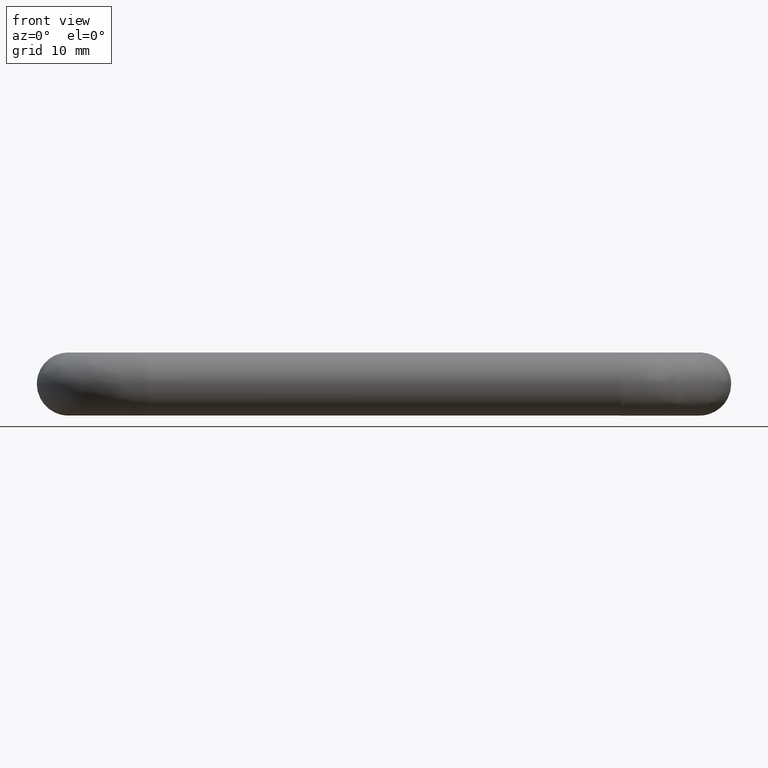
[diagram: clean part render]
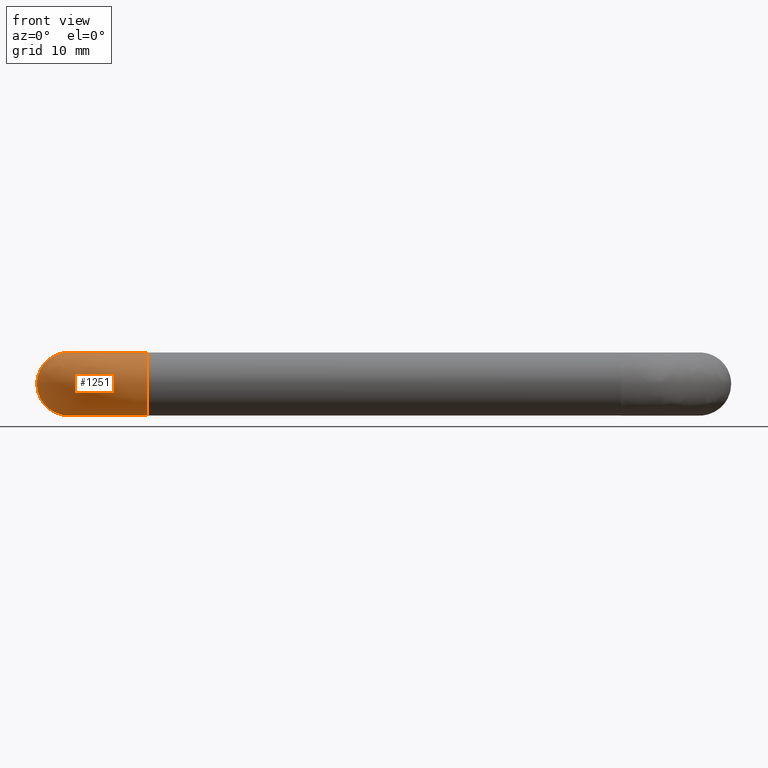
[diagram: same view with one face highlighted and labeled with its STEP entity id]
A machine part, front view. The second image highlights one B-rep face of the part: STEP entity #1251.
In plain terms, the highlighted face is a freeform B-spline surface patch.
Its self-contained STEP definition (entity closure, byte-faithful):
#676=CARTESIAN_POINT('',(12.499999999457479,-29.937169799666218,4.999605221007558));
#677=VERTEX_POINT('',#676);
#691=CARTESIAN_POINT('',(12.500000000000000,-34.999999999999993,0.0));
#692=VERTEX_POINT('',#691);
#693=CARTESIAN_POINT('',(12.499999999457483,-29.937169799666226,4.999605221007558));
#694=CARTESIAN_POINT('',(12.500000000000005,-29.968583659123556,5.0));
#695=CARTESIAN_POINT('',(12.500000000000000,-30.0,5.0));
#696=CARTESIAN_POINT('',(12.500000000000000,-34.999999999999993,5.000000000000001));
#697=CARTESIAN_POINT('',(12.500000000000000,-34.999999999999993,0.0));
#705=(BOUNDED_CURVE()B_SPLINE_CURVE(2,(#693,#694,#695,#696,#697),.UNSPECIFIED.,.F.,.U.)B_SPLINE_CURVE_WITH_KNOTS((3,2,3),(0.747784295857223,0.750000000000000,1.0),.UNSPECIFIED.)CURVE()GEOMETRIC_REPRESENTATION_ITEM()RATIONAL_B_SPLINE_CURVE((0.994854295495546,0.997404141126735,1.0,0.707106781186548,1.0))REPRESENTATION_ITEM(''));
#706=EDGE_CURVE('',#677,#692,#705,.T.);
#708=CARTESIAN_POINT('',(12.499999999596270,-30.348666259178511,-4.987828369111188));
#709=VERTEX_POINT('',#708);
#710=CARTESIAN_POINT('',(12.500000000000000,-34.999999999999993,0.0));
#711=CARTESIAN_POINT('',(12.499999999999998,-34.999999999999993,-4.662684233893985));
#712=CARTESIAN_POINT('',(12.499999999596271,-30.348666259178515,-4.987828369111187));
#720=(BOUNDED_CURVE()B_SPLINE_CURVE(2,(#710,#711,#712),.UNSPECIFIED.,.F.,.U.)B_SPLINE_CURVE_WITH_KNOTS((3,3),(0.0,0.237833686445387),.UNSPECIFIED.)CURVE()GEOMETRIC_REPRESENTATION_ITEM()RATIONAL_B_SPLINE_CURVE((1.0,0.721360504138965,0.972879876197243))REPRESENTATION_ITEM(''));
#721=EDGE_CURVE('',#692,#709,#720,.T.);
#987=CARTESIAN_POINT('',(-0.348666258404388,-17.500000000158121,-4.987828369165310));
#988=VERTEX_POINT('',#987);
#1004=CARTESIAN_POINT('',(-4.999999999999998,-17.499999999999751,0.0));
#1005=VERTEX_POINT('',#1004);
#1006=CARTESIAN_POINT('',(-4.999999999999998,-17.499999999999751,0.0));
#1007=CARTESIAN_POINT('',(-4.999999999999998,-17.499999999999748,-4.662684235345060));
#1008=CARTESIAN_POINT('',(-0.348666258404388,-17.500000000158124,-4.987828369165310));
#1016=(BOUNDED_CURVE()B_SPLINE_CURVE(2,(#1006,#1007,#1008),.UNSPECIFIED.,.F.,.U.)B_SPLINE_CURVE_WITH_KNOTS((3,3),(0.0,0.237833686498780),.UNSPECIFIED.)CURVE()GEOMETRIC_REPRESENTATION_ITEM()RATIONAL_B_SPLINE_CURVE((1.0,0.721360504076412,0.972879876310173))REPRESENTATION_ITEM(''));
#1017=EDGE_CURVE('',#1005,#988,#1016,.T.);
#1019=CARTESIAN_POINT('',(0.062830199907917,-17.500000000368988,4.999605221012907));
#1020=VERTEX_POINT('',#1019);
#1021=CARTESIAN_POINT('',(0.062830199907917,-17.500000000368981,4.999605221012906));
#1022=CARTESIAN_POINT('',(0.031416340450660,-17.499999999999744,5.0));
#1023=CARTESIAN_POINT('',(2.143061E-015,-17.499999999999751,5.0));
#1024=CARTESIAN_POINT('',(-4.999999999999997,-17.499999999999755,5.000000000000001));
#1025=CARTESIAN_POINT('',(-4.999999999999998,-17.499999999999751,0.0));
#1033=(BOUNDED_CURVE()B_SPLINE_CURVE(2,(#1021,#1022,#1023,#1024,#1025),.UNSPECIFIED.,.F.,.U.)B_SPLINE_CURVE_WITH_KNOTS((3,2,3),(0.747784295887175,0.750000000000000,1.0),.UNSPECIFIED.)CURVE()GEOMETRIC_REPRESENTATION_ITEM()RATIONAL_B_SPLINE_CURVE((0.994854295564483,0.997404141161825,1.0,0.707106781186548,1.0))REPRESENTATION_ITEM(''));
#1034=EDGE_CURVE('',#1020,#1005,#1033,.T.);
#1190=CARTESIAN_POINT('',(-0.246042516035738,-16.616310052469053,-4.992863310941383));
#1191=CARTESIAN_POINT('',(-1.262162330518762,-31.272475818502183,-4.992863310941380));
#1192=CARTESIAN_POINT('',(13.393238119068274,-30.245376942507207,-4.992863310941380));
#1193=CARTESIAN_POINT('',(-0.281870705461842,-16.613826064925927,-4.990352785959026));
#1194=CARTESIAN_POINT('',(-1.300846758118175,-31.311189236558867,-4.990352785959026));
#1195=CARTESIAN_POINT('',(13.395748945820371,-30.281203261055008,-4.990352785959026));
#1196=CARTESIAN_POINT('',(-5.016890184537566,-16.285544630923408,-4.658564189198486));
#1197=CARTESIAN_POINT('',(-6.413343960855873,-36.427517790591544,-4.658564189198486));
#1198=CARTESIAN_POINT('',(13.727577424182968,-35.015975486630893,-4.658564189198487));
#1199=CARTESIAN_POINT('',(-4.957698358406729,-16.289648431900225,0.062830199416762));
#1200=CARTESIAN_POINT('',(-6.349433337709312,-36.363559272250320,0.062830199416762));
#1201=CARTESIAN_POINT('',(13.723429282093315,-34.956786751381998,0.062830199416762));
#1202=CARTESIAN_POINT('',(-4.895018620471904,-16.293994051668641,5.062435420435840));
#1203=CARTESIAN_POINT('',(-6.281756744978027,-36.295831962072974,5.062435420435841));
#1204=CARTESIAN_POINT('',(13.719036708386920,-34.894110286461057,5.062435420435841));
#1205=CARTESIAN_POINT('',(0.128007412488623,-16.642243134152704,4.999159361727656));
#1206=CARTESIAN_POINT('',(-0.858292986006939,-30.868303810678327,4.999159361727656));
#1207=CARTESIAN_POINT('',(13.367024833323113,-29.871346546141964,4.999159361727656));
#1208=CARTESIAN_POINT('',(0.163193479199255,-16.644682602984393,4.998716115841953));
#1209=CARTESIAN_POINT('',(-0.820301871413137,-30.830284225202231,4.998716115841953));
#1210=CARTESIAN_POINT('',(13.364559006302185,-29.836162316779252,4.998716115841953));
#1218=(BOUNDED_SURFACE()B_SPLINE_SURFACE(2,2,((#1190,#1193,#1196,#1199,#1202,#1205,#1208),(#1191,#1194,#1197,#1200,#1203,#1206,#1209),(#1192,#1195,#1198,#1201,#1204,#1207,#1210)),.UNSPECIFIED.,.F.,.F.,.U.)B_SPLINE_SURFACE_WITH_KNOTS((3,3),(3,1,2,1,3),(0.0,31.890571891225530),(0.0,0.083145680409495,8.036046077972921,16.320317325434821,16.403700249692388),.UNSPECIFIED.)GEOMETRIC_REPRESENTATION_ITEM()RATIONAL_B_SPLINE_SURFACE(((0.905744113961627,0.903251975339743,0.662386295974072,0.921487970695580,0.651590392860676,0.924204546314323,0.926921121933066),(0.591078839193721,0.589452496409896,0.432266152092013,0.601353110281207,0.425220862167464,0.603125918228350,0.604898726175492),(0.895737708767348,0.893273102589193,0.655068439230114,0.911307631818076,0.644391806205615,0.913994195476528,0.916680759134980)))REPRESENTATION_ITEM('')SURFACE());
#1219=ORIENTED_EDGE('',*,*,#721,.F.);
#1220=ORIENTED_EDGE('',*,*,#706,.F.);
#1221=CARTESIAN_POINT('',(0.062830199907917,-17.500000000368981,4.999605221012907));
#1222=CARTESIAN_POINT('',(0.062830200155230,-29.937169799497962,4.999605221019080));
#1223=CARTESIAN_POINT('',(12.499999999457486,-29.937169799666226,4.999605221007558));
#1231=(BOUNDED_CURVE()B_SPLINE_CURVE(2,(#1221,#1222,#1223),.UNSPECIFIED.,.F.,.U.)B_SPLINE_CURVE_WITH_KNOTS((3,3),(-1.747842683607217,-0.278273131036511),.UNSPECIFIED.)CURVE()GEOMETRIC_REPRESENTATION_ITEM()RATIONAL_B_SPLINE_CURVE((0.893710737941713,0.628668022916562,0.884455039423838))REPRESENTATION_ITEM(''));
#1232=EDGE_CURVE('',#1020,#677,#1231,.T.);
#1233=ORIENTED_EDGE('',*,*,#1232,.F.);
#1234=ORIENTED_EDGE('',*,*,#1034,.T.);
#1235=ORIENTED_EDGE('',*,*,#1017,.T.);
#1236=CARTESIAN_POINT('',(-0.348666258404388,-17.500000000158121,-4.987828369165310));
#1237=CARTESIAN_POINT('',(-0.348666257560471,-30.348666257069535,-4.987828369202160));
#1238=CARTESIAN_POINT('',(12.499999999596271,-30.348666259178515,-4.987828369111188));
#1246=(BOUNDED_CURVE()B_SPLINE_CURVE(2,(#1236,#1237,#1238),.UNSPECIFIED.,.F.,.U.)B_SPLINE_CURVE_WITH_KNOTS((3,3),(-1.747842683643489,-0.278273131011289),.UNSPECIFIED.)CURVE()GEOMETRIC_REPRESENTATION_ITEM()RATIONAL_B_SPLINE_CURVE((0.873607430583707,0.614526639164725,0.864559931587866))REPRESENTATION_ITEM(''));
#1247=EDGE_CURVE('',#988,#709,#1246,.T.);
#1248=ORIENTED_EDGE('',*,*,#1247,.T.);
#1249=EDGE_LOOP('',(#1219,#1220,#1233,#1234,#1235,#1248));
#1250=FACE_OUTER_BOUND('',#1249,.T.);
#1251=ADVANCED_FACE('',(#1250),#1218,.T.);